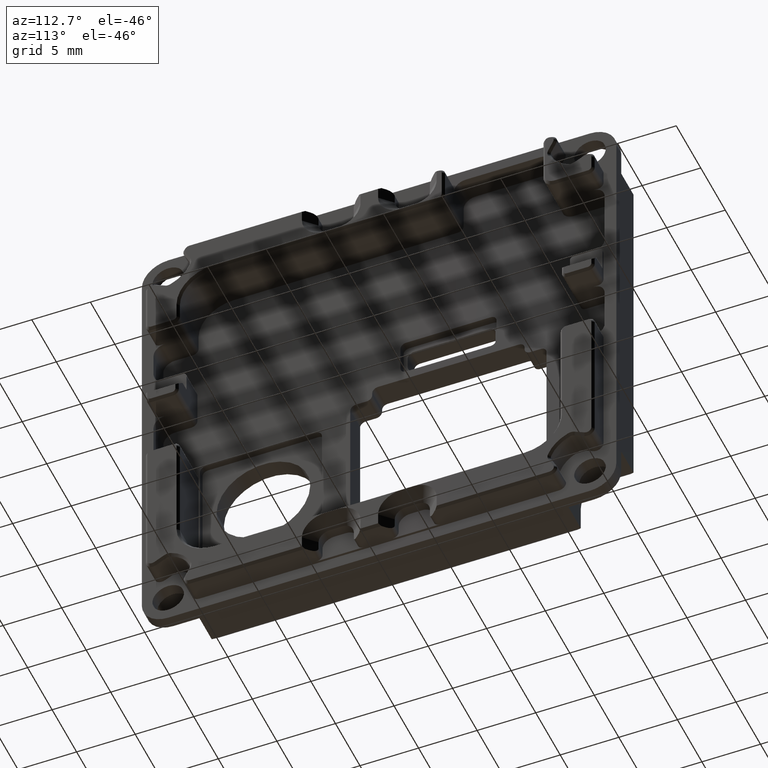
[diagram: clean part render]
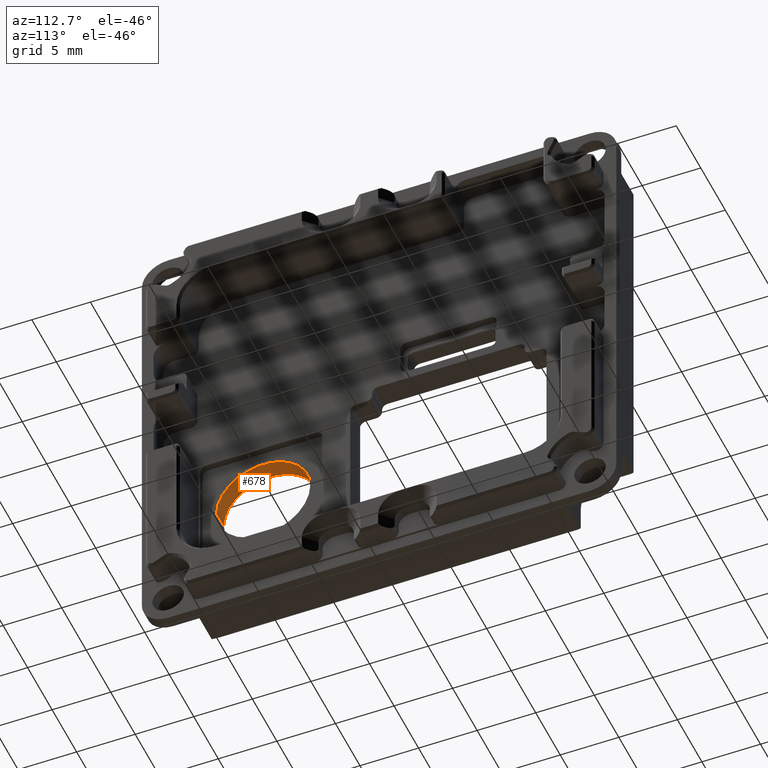
[diagram: same view with one face highlighted and labeled with its STEP entity id]
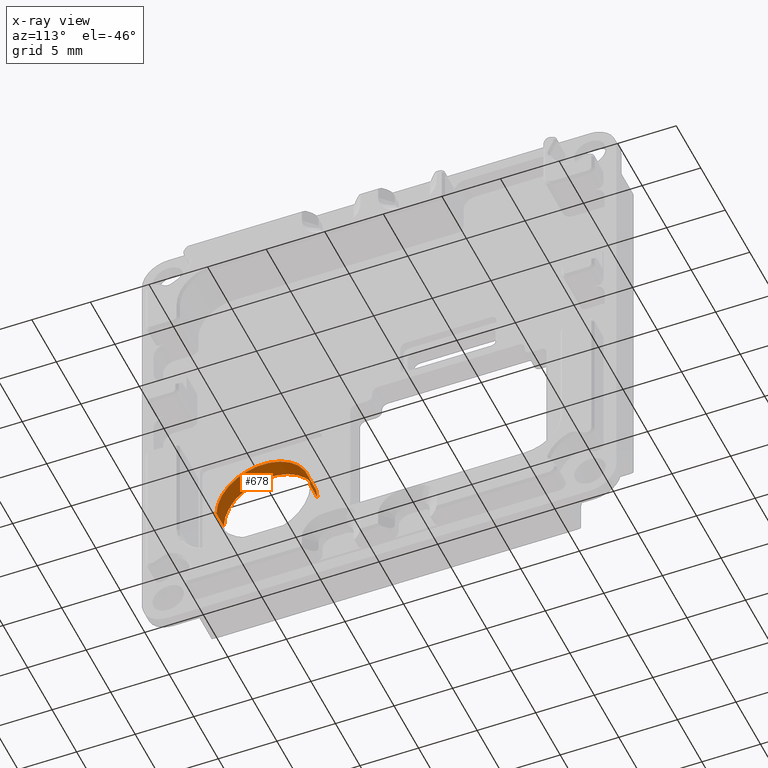
[diagram: x-ray of the same camera — body ghosted, the highlighted face saturated]
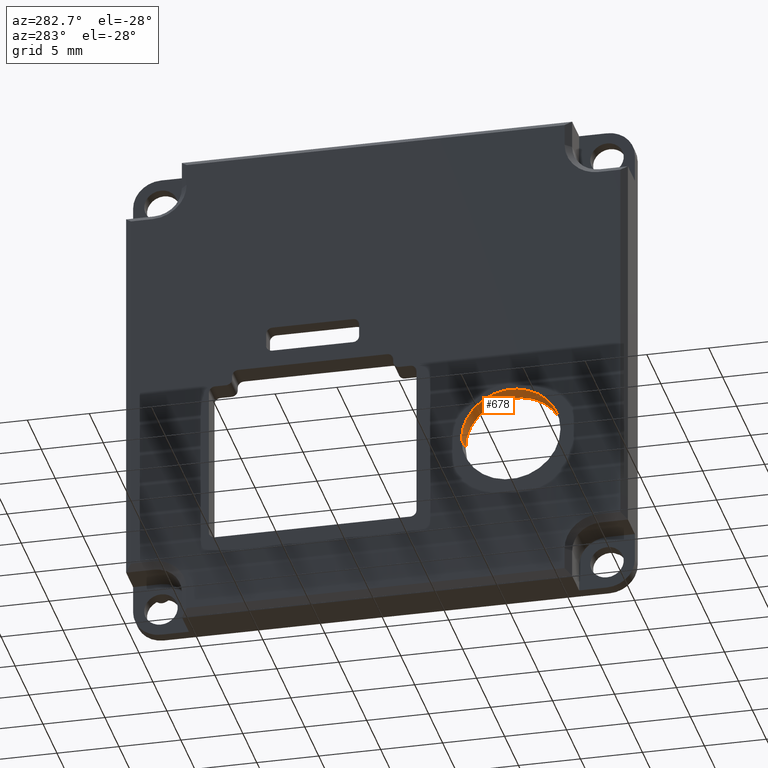
[diagram: same view with one face highlighted and labeled with its STEP entity id]
A machine part, auxiliary view. The second image highlights one B-rep face of the part: STEP entity #678.
The next image is the same camera in x-ray: the body ghosted, the highlighted face saturated — about 0% of this face is hidden behind the body in this view.
A second angle (auxiliary view) of the same face is appended — the face is thin or edge-on in the first view.
In plain terms, the highlighted cylindrical surface (partial cylindrical patch) has radius 4 mm, axis along (-1, 0, 0).
Its self-contained STEP definition (entity closure, byte-faithful):
#457=CYLINDRICAL_SURFACE('',#9335,4.);
#678=ADVANCED_FACE('',(#1056),#457,.F.);
#1056=FACE_OUTER_BOUND('',#1467,.F.);
#1467=EDGE_LOOP('',(#2783,#2784,#2785,#2786));
#2783=ORIENTED_EDGE('',*,*,#6031,.F.);
#2784=ORIENTED_EDGE('',*,*,#6656,.F.);
#2785=ORIENTED_EDGE('',*,*,#6021,.T.);
#2786=ORIENTED_EDGE('',*,*,#6655,.T.);
#5639=CIRCLE('',#8881,4.);
#5645=CIRCLE('',#8887,4.);
#6021=EDGE_CURVE('',#8705,#8706,#5639,.T.);
#6031=EDGE_CURVE('',#8695,#8696,#5645,.T.);
#6655=EDGE_CURVE('',#8706,#8696,#7382,.T.);
#6656=EDGE_CURVE('',#8705,#8695,#7383,.T.);
#7382=LINE('',#12978,#8061);
#7383=LINE('',#12979,#8062);
#8061=VECTOR('',#10493,1.5);
#8062=VECTOR('',#10494,1.5);
#8695=VERTEX_POINT('',#11985);
#8696=VERTEX_POINT('',#11986);
#8705=VERTEX_POINT('',#11995);
#8706=VERTEX_POINT('',#11996);
#8881=AXIS2_PLACEMENT_3D('',#12344,#9640,#9641);
#8887=AXIS2_PLACEMENT_3D('',#12354,#9656,#9657);
#9335=AXIS2_PLACEMENT_3D('',#13395,#11145,#11146);
#9640=DIRECTION('',(-1.,0.,0.));
#9641=DIRECTION('',(0.,-1.,0.));
#9656=DIRECTION('',(-1.,0.,0.));
#9657=DIRECTION('',(0.,-1.,0.));
#10493=DIRECTION('',(-1.,0.,0.));
#10494=DIRECTION('',(-1.,0.,0.));
#11145=DIRECTION('',(-1.,0.,0.));
#11146=DIRECTION('',(0.,-1.,0.));
#11985=CARTESIAN_POINT('',(-4.,-14.9219998377725,-7.30537417027289));
#11986=CARTESIAN_POINT('',(-4.,-6.92199983777246,-7.30537417027289));
#11995=CARTESIAN_POINT('',(-2.5,-14.9219998377725,-7.30537417027289));
#11996=CARTESIAN_POINT('',(-2.5,-6.92199983777246,-7.30537417027289));
#12344=CARTESIAN_POINT('',(-2.5,-10.9219998377725,-7.30537417027289));
#12354=CARTESIAN_POINT('',(-4.,-10.9219998377725,-7.30537417027289));
#12978=CARTESIAN_POINT('',(-2.5,-6.92199983777246,-7.30537417027289));
#12979=CARTESIAN_POINT('',(-2.5,-14.9219998377725,-7.30537417027289));
#13395=CARTESIAN_POINT('',(2.,-10.9219998377725,-7.30537417027289));